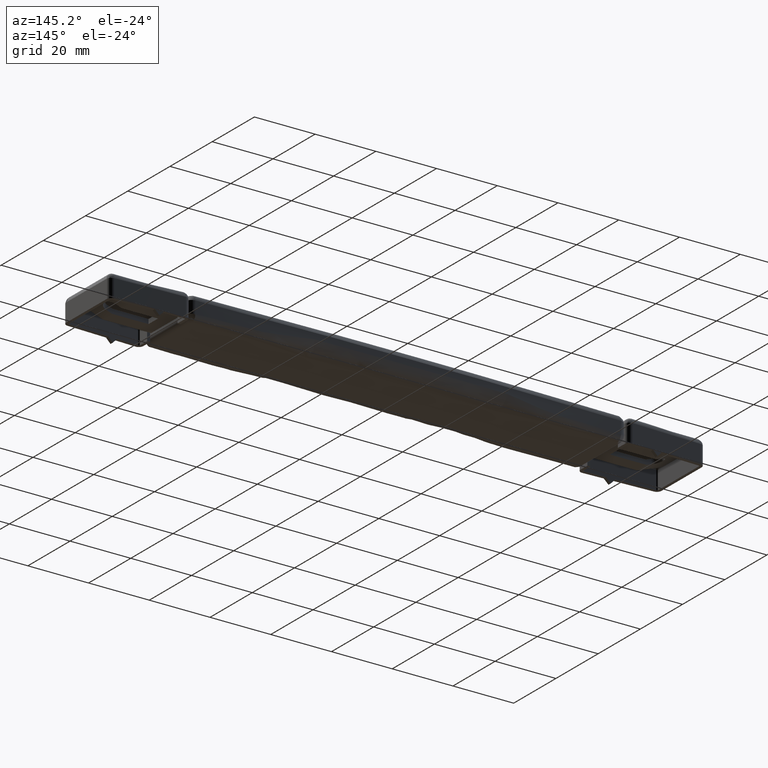
[diagram: clean part render]
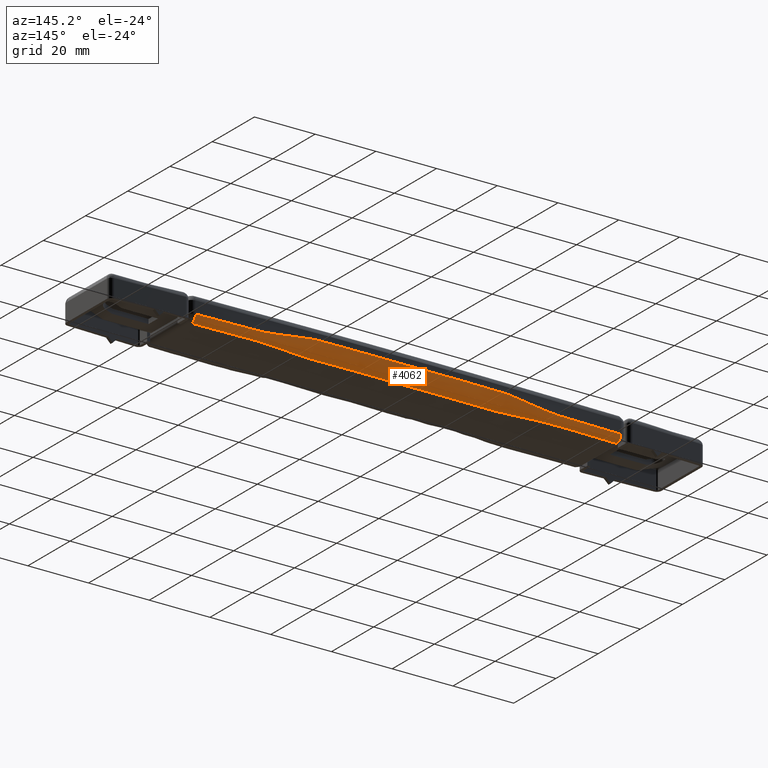
[diagram: same view with one face highlighted and labeled with its STEP entity id]
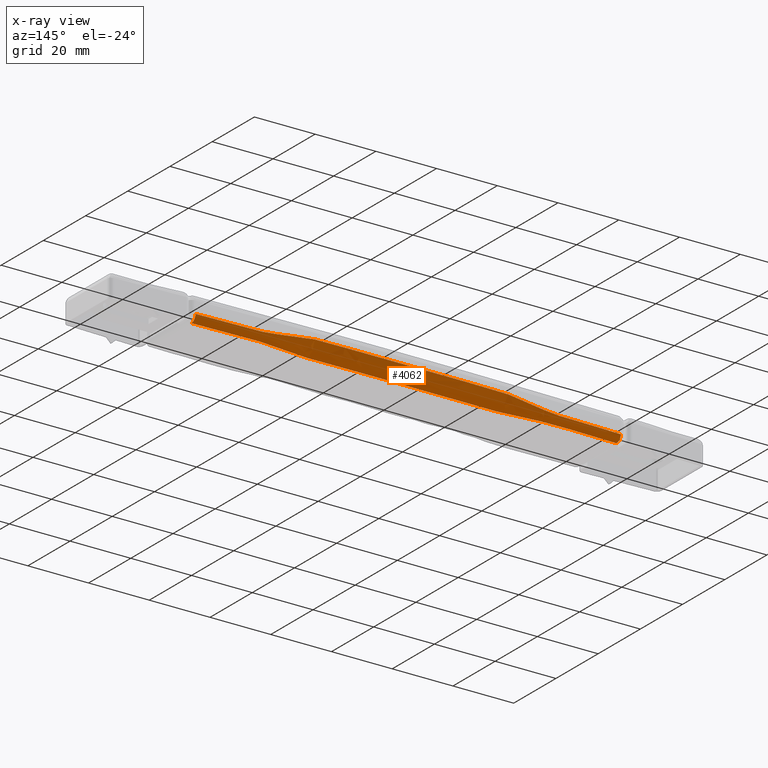
[diagram: x-ray of the same camera — body ghosted, the highlighted face saturated]
A machine part, auxiliary view. The second image highlights one B-rep face of the part: STEP entity #4062.
The next image is the same camera in x-ray: the body ghosted, the highlighted face saturated — about 0% of this face is hidden behind the body in this view.
In plain terms, the highlighted face is a freeform B-spline surface patch.
Its self-contained STEP definition (entity closure, byte-faithful):
#3241=CARTESIAN_POINT('',(-69.999500000000012,9.434623308189460,0.0));
#3242=VERTEX_POINT('',#3241);
#3287=CARTESIAN_POINT('',(70.0,9.434608070649849,0.0));
#3288=VERTEX_POINT('',#3287);
#3570=CARTESIAN_POINT('',(-69.999500000000012,9.434623308189460,0.0));
#3571=CARTESIAN_POINT('',(-64.890774951349059,9.590416958803735,0.0));
#3572=CARTESIAN_POINT('',(-58.960390457981433,9.750965812828145,0.0));
#3573=CARTESIAN_POINT('',(-52.755754564660471,9.896153552632587,0.0));
#3574=CARTESIAN_POINT('',(-51.352911080286042,9.928799184463300,0.0));
#3575=CARTESIAN_POINT('',(-50.668684534759073,9.946255139675378,0.0));
#3576=CARTESIAN_POINT('',(-49.619476621810222,9.972973251448888,0.0));
#3577=CARTESIAN_POINT('',(-48.786441725788833,9.967728333638700,0.0));
#3578=CARTESIAN_POINT('',(-47.417989484242980,9.925785367020140,0.0));
#3579=CARTESIAN_POINT('',(-46.005354894524451,9.843727214823481,0.0));
#3580=CARTESIAN_POINT('',(-44.551087082496352,9.708435514597785,0.0));
#3581=CARTESIAN_POINT('',(-43.439625053543963,9.587574789507888,0.0));
#3582=CARTESIAN_POINT('',(-41.898996652501992,9.403099461580830,0.0));
#3583=CARTESIAN_POINT('',(-40.269934847263670,9.189983279529628,0.0));
#3584=CARTESIAN_POINT('',(-38.935083663525731,9.014349651794399,0.0));
#3585=CARTESIAN_POINT('',(-37.894121848899232,8.879563007693978,0.0));
#3586=CARTESIAN_POINT('',(-36.671464605237290,8.726727288714269,0.0));
#3587=CARTESIAN_POINT('',(-35.310473294189777,8.578302020593412,0.0));
#3588=CARTESIAN_POINT('',(-34.220146455806990,8.474872409705190,0.0));
#3589=CARTESIAN_POINT('',(-32.809745965396807,8.363749403147708,0.0));
#3590=CARTESIAN_POINT('',(-31.532664249190180,8.311924925097593,0.0));
#3591=CARTESIAN_POINT('',(-30.734190936513670,8.304443334949321,0.0));
#3592=CARTESIAN_POINT('',(-30.574575502662601,8.302762701289746,0.0));
#3593=CARTESIAN_POINT('',(-30.414962385631181,8.305486938083607,0.0));
#3594=CARTESIAN_POINT('',(-30.098303679549630,8.308039407971991,0.0));
#3595=CARTESIAN_POINT('',(-28.934661159184351,8.321151954508180,0.0));
#3596=CARTESIAN_POINT('',(-26.858319434721441,8.343758273247140,0.0));
#3597=CARTESIAN_POINT('',(-25.007334982369130,8.364941572814804,0.0));
#3598=CARTESIAN_POINT('',(-8.762183433331632,8.535488708433626,0.0));
#3599=CARTESIAN_POINT('',(7.302075077735280,8.543128132073253,0.0));
#3600=CARTESIAN_POINT('',(23.821079140000290,8.377762784903579,0.0));
#3601=CARTESIAN_POINT('',(26.373868388101481,8.349289450400358,0.0));
#3602=CARTESIAN_POINT('',(28.457318737856870,8.326400722601145,0.0));
#3603=CARTESIAN_POINT('',(30.084415788392359,8.308080847125197,0.0));
#3604=CARTESIAN_POINT('',(30.432118118086169,8.305412094265448,0.0));
#3605=CARTESIAN_POINT('',(30.584626421004891,8.302824377148733,0.0));
#3606=CARTESIAN_POINT('',(30.737109678923542,8.304321033329259,0.0));
#3607=CARTESIAN_POINT('',(32.080672195623208,8.317709368031197,0.0));
#3608=CARTESIAN_POINT('',(33.493625770136589,8.406272190257790,0.0));
#3609=CARTESIAN_POINT('',(35.197222232093146,8.567457691546924,0.0));
#3610=CARTESIAN_POINT('',(35.968708880908281,8.649364991588758,0.0));
#3611=CARTESIAN_POINT('',(37.328566810264263,8.807571395964448,0.0));
#3612=CARTESIAN_POINT('',(38.845110517742498,9.001018452296931,0.0));
#3613=CARTESIAN_POINT('',(40.360612112509990,9.202121361472461,0.0));
#3614=CARTESIAN_POINT('',(41.628016110541942,9.365123226210358,0.0));
#3615=CARTESIAN_POINT('',(42.714715030049682,9.501690128660526,0.0));
#3616=CARTESIAN_POINT('',(43.598549196084193,9.605370916759533,0.0));
#3617=CARTESIAN_POINT('',(44.687552026440109,9.721807704064212,0.0));
#3618=CARTESIAN_POINT('',(46.051103835965947,9.845858441193661,0.0));
#3619=CARTESIAN_POINT('',(47.463620767984331,9.927231228158316,0.0));
#3620=CARTESIAN_POINT('',(48.284634400065073,9.952851481966599,0.0));
#3621=CARTESIAN_POINT('',(48.809363751343092,9.959169605841877,0.0));
#3622=CARTESIAN_POINT('',(49.493869530361167,9.958658382607661,0.0));
#3623=CARTESIAN_POINT('',(50.543445629594878,9.945985322345562,0.0));
#3624=CARTESIAN_POINT('',(51.661317883309522,9.923184170096665,0.0));
#3625=CARTESIAN_POINT('',(53.075581663139602,9.887381984490968,0.0));
#3626=CARTESIAN_POINT('',(56.006606913338111,9.811899373512615,0.0));
#3627=CARTESIAN_POINT('',(58.618380424465983,9.748146477771254,0.0));
#3628=CARTESIAN_POINT('',(61.104657165599221,9.687608009864780,0.0));
#3629=CARTESIAN_POINT('',(62.096946917667523,9.664348017071228,0.0));
#3630=CARTESIAN_POINT('',(65.233217615903939,9.578771730212621,0.0));
#3631=CARTESIAN_POINT('',(67.856111875632635,9.499585808200294,0.0));
#3632=CARTESIAN_POINT('',(70.0,9.434608070649849,0.0));
#3633=B_SPLINE_CURVE_WITH_KNOTS('',3,(#3570,#3571,#3572,#3573,#3574,#3575,#3576,#3577,#3578,#3579,#3580,#3581,#3582,#3583,#3584,#3585,#3586,#3587,#3588,#3589,#3590,#3591,#3592,#3593,#3594,#3595,#3596,#3597,#3598,#3599,#3600,#3601,#3602,#3603,#3604,#3605,#3606,#3607,#3608,#3609,#3610,#3611,#3612,#3613,#3614,#3615,#3616,#3617,#3618,#3619,#3620,#3621,#3622,#3623,#3624,#3625,#3626,#3627,#3628,#3629,#3630,#3631,#3632),.UNSPECIFIED.,.F.,.U.,(4,1,1,1,1,1,1,1,1,1,1,1,1,2,1,1,1,1,2,1,2,1,1,2,1,1,1,1,2,1,2,1,1,1,1,1,1,1,1,1,1,1,1,1,1,1,1,1,1,1,2,1,1,4),(0.000127201768322,15.333424247622791,17.797704069123359,18.619130676290268,19.543090128636180,19.851076612751442,21.767651213891700,22.041556550005168,23.958303684436270,26.011873534872379,26.422660623407051,27.312359144772021,30.666690802362641,31.351436989211649,33.815652478253128,35.047859827711427,35.458463320848040,37.101304839379772,39.291733277984690,39.496674876865271,39.770600846053640,40.446679672319242,43.261749671859548,45.999995678922247,91.999889840061741,94.190356841096587,95.559485580304752,99.658733834304030,100.441085226701200,100.701869024166800,100.898636084870600,104.731958576593500,105.142695338069800,106.032573743579800,107.059322136123000,109.249744058952700,110.618986005734300,111.645693910061600,113.083268195288400,113.904706724467800,114.315337459230700,116.368911983708700,118.011715205922400,118.559310457083700,118.833010658596810,119.585980009285390,120.612777927124990,121.981932509575100,122.940267321004100,124.856929439982910,130.777920893772010,132.317970389881710,133.755603685478890,140.190225599619590),.UNSPECIFIED.);
#3634=EDGE_CURVE('',#3242,#3288,#3633,.T.);
#3754=CARTESIAN_POINT('',(-70.042578433948378,10.848180621515700,0.585786448086645));
#3755=VERTEX_POINT('',#3754);
#3756=CARTESIAN_POINT('',(-70.060422106179104,11.433695242360381,1.999999999991010));
#3757=VERTEX_POINT('',#3756);
#3758=CARTESIAN_POINT('',(-70.042578433948378,10.848180621515702,0.585786448086645));
#3759=CARTESIAN_POINT('',(-70.060422105403703,11.433695217090797,1.171572883918898));
#3760=CARTESIAN_POINT('',(-70.060422105403504,11.433695217088941,2.0));
#3768=(BOUNDED_CURVE()B_SPLINE_CURVE(2,(#3758,#3759,#3760),.UNSPECIFIED.,.F.,.U.)B_SPLINE_CURVE_WITH_KNOTS((3,3),(0.500000004464082,1.0),.UNSPECIFIED.)CURVE()GEOMETRIC_REPRESENTATION_ITEM()RATIONAL_B_SPLINE_CURVE((0.853553390593273,0.853553391900773,1.0))REPRESENTATION_ITEM(''));
#3769=EDGE_CURVE('',#3755,#3757,#3768,.T.);
#3771=CARTESIAN_POINT('',(-69.999500000000012,9.434623308189460,0.0));
#3772=CARTESIAN_POINT('',(-70.024734762438399,10.262666024146789,0.000000010459740));
#3773=CARTESIAN_POINT('',(-70.042578433948378,10.848180621515702,0.585786448086645));
#3781=(BOUNDED_CURVE()B_SPLINE_CURVE(2,(#3771,#3772,#3773),.UNSPECIFIED.,.F.,.U.)B_SPLINE_CURVE_WITH_KNOTS((3,3),(8.928164E-009,0.500000004464082),.UNSPECIFIED.)CURVE()GEOMETRIC_REPRESENTATION_ITEM()RATIONAL_B_SPLINE_CURVE((0.999999994770003,0.853553389285774,0.853553390593273))REPRESENTATION_ITEM(''));
#3782=EDGE_CURVE('',#3242,#3755,#3781,.T.);
#3825=CARTESIAN_POINT('',(70.060922541340304,11.433679991446960,1.999999999896195));
#3826=VERTEX_POINT('',#3825);
#3841=CARTESIAN_POINT('',(70.043078735471397,10.848165374704230,0.585786448044203));
#3842=VERTEX_POINT('',#3841);
#3843=CARTESIAN_POINT('',(70.043078735471383,10.848165374704234,0.585786448044203));
#3844=CARTESIAN_POINT('',(70.025234936505242,10.262650781215097,0.000000010417298));
#3845=CARTESIAN_POINT('',(69.999999993815877,9.434608095990788,1.581254E-016));
#3853=(BOUNDED_CURVE()B_SPLINE_CURVE(2,(#3843,#3844,#3845),.UNSPECIFIED.,.F.,.U.)B_SPLINE_CURVE_WITH_KNOTS((3,3),(0.500000004447414,1.0),.UNSPECIFIED.)CURVE()GEOMETRIC_REPRESENTATION_ITEM()RATIONAL_B_SPLINE_CURVE((0.853553390593274,0.853553389290657,0.999999994789531))REPRESENTATION_ITEM(''));
#3854=EDGE_CURVE('',#3842,#3288,#3853,.T.);
#3856=CARTESIAN_POINT('',(70.060922541340304,11.433679991446960,1.999999999896195));
#3857=CARTESIAN_POINT('',(70.060922534383096,11.433679966406251,1.171572883883157));
#3858=CARTESIAN_POINT('',(70.043078735471383,10.848165374704234,0.585786448044203));
#3866=(BOUNDED_CURVE()B_SPLINE_CURVE(2,(#3856,#3857,#3858),.UNSPECIFIED.,.F.,.U.)B_SPLINE_CURVE_WITH_KNOTS((3,3),(8.894828E-009,0.500000004447414),.UNSPECIFIED.)CURVE()GEOMETRIC_REPRESENTATION_ITEM()RATIONAL_B_SPLINE_CURVE((1.0,0.853553391895891,0.853553390593274))REPRESENTATION_ITEM(''));
#3867=EDGE_CURVE('',#3826,#3842,#3866,.T.);
#3872=CARTESIAN_POINT('',(-71.398008011460334,9.358067568904044,1.064665E-014));
#3873=CARTESIAN_POINT('',(-71.398226122469509,9.365084148610045,8.430210E-015));
#3874=CARTESIAN_POINT('',(-71.398749661284910,9.381926268780919,3.110031E-015));
#3875=CARTESIAN_POINT('',(-71.461195873916097,11.390806196471511,-6.336374E-013));
#3876=CARTESIAN_POINT('',(-71.461195865796867,11.390805930815194,2.011150584023862));
#3877=CARTESIAN_POINT('',(-71.461195865727873,11.390805928555563,2.029284304946693));
#3878=CARTESIAN_POINT('',(-71.461195865701157,11.390805927681551,2.036298262712596));
#3879=CARTESIAN_POINT('',(-65.245965887433087,9.549068966498220,1.073519E-014));
#3880=CARTESIAN_POINT('',(-65.246165204319709,9.556086113732450,8.500012E-015));
#3881=CARTESIAN_POINT('',(-65.246643631002470,9.572929596147315,3.134854E-015));
#3882=CARTESIAN_POINT('',(-65.303708989022653,11.581971730776495,-6.130711E-013));
#3883=CARTESIAN_POINT('',(-65.303709129767640,11.581976314803125,2.011150584023863));
#3884=CARTESIAN_POINT('',(-65.303709130965231,11.581976353798733,2.029284304946692));
#3885=CARTESIAN_POINT('',(-65.303709131428249,11.581976368876633,2.036298262712594));
#3886=CARTESIAN_POINT('',(-59.093162940228154,9.715597716061023,-6.417127E-015));
#3887=CARTESIAN_POINT('',(-59.093343461637609,9.722615387642193,-5.080631E-015));
#3888=CARTESIAN_POINT('',(-59.093776772937197,9.739460128676329,-1.872597E-015));
#3889=CARTESIAN_POINT('',(-59.145460905471218,11.748652661149235,3.326735E-013));
#3890=CARTESIAN_POINT('',(-59.145460900319513,11.748652493801796,2.011150584023856));
#3891=CARTESIAN_POINT('',(-59.145460900276206,11.748652492391175,2.029284304946678));
#3892=CARTESIAN_POINT('',(-59.145460900259422,11.748652491845750,2.036298262712577));
#3893=CARTESIAN_POINT('',(-51.335830226050625,9.894355612141254,1.301874E-015));
#3894=CARTESIAN_POINT('',(-51.335987049869878,9.901373829230167,1.031069E-015));
#3895=CARTESIAN_POINT('',(-51.336363479087574,9.918219879663479,3.810466E-016));
#3896=CARTESIAN_POINT('',(-51.381262879300301,11.927568582755494,-9.554902E-014));
#3897=CARTESIAN_POINT('',(-51.381262879543144,11.927568590916609,2.011150584023859));
#3898=CARTESIAN_POINT('',(-51.381262879545496,11.927568590992694,2.029284304946685));
#3899=CARTESIAN_POINT('',(-51.381262879546377,11.927568591022101,2.036298262712585));
#3900=CARTESIAN_POINT('',(-49.732631905050269,9.962509755279474,-2.636167E-015));
#3901=CARTESIAN_POINT('',(-49.732781276072444,9.969414607451673,-2.088041E-015));
#3902=CARTESIAN_POINT('',(-49.733139816103503,9.985988544457895,-7.723574E-016));
#3903=CARTESIAN_POINT('',(-49.775844849609165,11.962881368265876,2.789991E-013));
#3904=CARTESIAN_POINT('',(-49.775844849627646,11.962881369245945,1.978633874000777));
#3905=CARTESIAN_POINT('',(-49.775844849627859,11.962881369254948,1.996474405070205));
#3906=CARTESIAN_POINT('',(-49.775844849627916,11.962881369258429,2.003374959676441));
#3907=CARTESIAN_POINT('',(-42.505893692358633,9.739620822144845,1.136462E-014));
#3908=CARTESIAN_POINT('',(-42.506049367749981,9.747817459912454,9.001351E-015));
#3909=CARTESIAN_POINT('',(-42.506423040359493,9.767492111104845,3.328719E-015));
#3910=CARTESIAN_POINT('',(-42.551305218211759,12.114222802895437,-1.101747E-012));
#3911=CARTESIAN_POINT('',(-42.551305218117079,12.114222797755824,2.348672567390052));
#3912=CARTESIAN_POINT('',(-42.551305218116269,12.114222797709139,2.369849585763576));
#3913=CARTESIAN_POINT('',(-42.551305218115949,12.114222797691077,2.378040663210488));
#3914=CARTESIAN_POINT('',(-36.867588902916026,8.373781576150103,-1.921275E-014));
#3915=CARTESIAN_POINT('',(-36.867813189148919,8.387027947770479,-1.521695E-014));
#3916=CARTESIAN_POINT('',(-36.868351550550820,8.418823636269192,-5.625696E-015));
#3917=CARTESIAN_POINT('',(-36.931787379115775,12.211336359449007,1.511982E-012));
#3918=CARTESIAN_POINT('',(-36.931787379343938,12.211336371852006,3.795486065559294));
#3919=CARTESIAN_POINT('',(-36.931787379346019,12.211336371963013,3.829708408563453));
#3920=CARTESIAN_POINT('',(-36.931787379346801,12.211336372005942,3.842945298526791));
#3921=CARTESIAN_POINT('',(-30.455376565715483,8.228879709549206,1.654876E-014));
#3922=CARTESIAN_POINT('',(-30.455562295456108,8.242931811337002,1.310905E-014));
#3923=CARTESIAN_POINT('',(-30.456008108479260,8.276661519667826,4.852596E-015));
#3924=CARTESIAN_POINT('',(-30.509160750900531,12.298780768076625,-1.745160E-012));
#3925=CARTESIAN_POINT('',(-30.509160751057394,12.298781127708114,4.025073767410186));
#3926=CARTESIAN_POINT('',(-30.509160751059113,12.298781130379616,4.061375820891756));
#3927=CARTESIAN_POINT('',(-30.509160751059763,12.298781131412918,4.075417123888466));
#3928=CARTESIAN_POINT('',(-10.419842569397987,8.494106215908078,-8.219825E-014));
#3929=CARTESIAN_POINT('',(-10.419906289816414,8.508146299048502,-6.513522E-014));
#3930=CARTESIAN_POINT('',(-10.420059239970087,8.541847158636518,-2.417830E-014));
#3931=CARTESIAN_POINT('',(-10.438309456831981,12.561542773834748,1.023517E-011));
#3932=CARTESIAN_POINT('',(-10.438309457947959,12.561541717505445,4.022190402996929));
#3933=CARTESIAN_POINT('',(-10.438309457955569,12.561541708133078,4.058457265373372));
#3934=CARTESIAN_POINT('',(-10.438309457958518,12.561541704507917,4.072484956771771));
#3935=CARTESIAN_POINT('',(10.420342083973939,8.494098585026761,6.493650E-014));
#3936=CARTESIAN_POINT('',(10.420405808311342,8.508138678958719,5.139213E-014));
#3937=CARTESIAN_POINT('',(10.420558767871892,8.541839564450003,1.888115E-014));
#3938=CARTESIAN_POINT('',(10.438810138532178,12.561540505146327,-2.681676E-013));
#3939=CARTESIAN_POINT('',(10.438810138774487,12.561539446774562,4.022195728214538));
#3940=CARTESIAN_POINT('',(10.438810138779933,12.561539437378601,4.058462618482278));
#3941=CARTESIAN_POINT('',(10.438810138782031,12.561539433744331,4.072490320668775));
#3942=CARTESIAN_POINT('',(30.455874152969965,8.228910641896313,-4.457336E-015));
#3943=CARTESIAN_POINT('',(30.456060336276003,8.242954941363704,-3.533142E-015));
#3944=CARTESIAN_POINT('',(30.456507238006708,8.276665921535887,-1.314768E-015));
#3945=CARTESIAN_POINT('',(30.509661374575426,12.298774564437405,8.486383E-013));
#3946=CARTESIAN_POINT('',(30.509661374507047,12.298774484440225,4.025061308409415));
#3947=CARTESIAN_POINT('',(30.509661374506909,12.298774484302768,4.061343189195054));
#3948=CARTESIAN_POINT('',(30.509661374506848,12.298774484249588,4.075376689577073));
#3949=CARTESIAN_POINT('',(36.868088923617123,8.373773548543376,3.690006E-014));
#3950=CARTESIAN_POINT('',(36.868313160319865,8.387019920733968,2.922188E-014));
#3951=CARTESIAN_POINT('',(36.868851402832931,8.418815610601392,1.079168E-014));
#3952=CARTESIAN_POINT('',(36.932287983595891,12.211328321260611,-2.083766E-012));
#3953=CARTESIAN_POINT('',(36.932287983791326,12.211328332426252,3.795486065356745));
#3954=CARTESIAN_POINT('',(36.932287983793024,12.211328332529577,3.829708408355288));
#3955=CARTESIAN_POINT('',(36.932287983793650,12.211328332569536,3.842945298316452));
#3956=CARTESIAN_POINT('',(42.506393485213735,9.739611571715493,-8.035578E-014));
#3957=CARTESIAN_POINT('',(42.506549219409187,9.747808208780397,-6.362138E-014));
#3958=CARTESIAN_POINT('',(42.506923033168057,9.767482858286066,-2.345328E-014));
#3959=CARTESIAN_POINT('',(42.551805801505346,12.114213539092537,3.966217E-012));
#3960=CARTESIAN_POINT('',(42.551805801434689,12.114213535072102,2.348672567619731));
#3961=CARTESIAN_POINT('',(42.551805801433993,12.114213535033233,2.369849585996894));
#3962=CARTESIAN_POINT('',(42.551805801433716,12.114213535018189,2.378040663445214));
#3963=CARTESIAN_POINT('',(49.733132094485946,9.962498928729834,2.008808E-014));
#3964=CARTESIAN_POINT('',(49.733281451474681,9.969403781051428,1.590410E-014));
#3965=CARTESIAN_POINT('',(49.733639957820849,9.985977718416251,5.861153E-015));
#3966=CARTESIAN_POINT('',(49.776345399964626,11.962870533236311,-9.430136E-013));
#3967=CARTESIAN_POINT('',(49.776345399974758,11.962870533909145,1.978633873924145));
#3968=CARTESIAN_POINT('',(49.776345399974907,11.962870533915922,1.996474404992592));
#3969=CARTESIAN_POINT('',(49.776345399974950,11.962870533918540,2.003374959598449));
#3970=CARTESIAN_POINT('',(51.336330326130060,9.894344437666172,-9.984005E-015));
#3971=CARTESIAN_POINT('',(51.336487151476980,9.901362654716630,-7.902856E-015));
#3972=CARTESIAN_POINT('',(51.336863584361559,9.918208705057639,-2.907407E-015));
#3973=CARTESIAN_POINT('',(51.381763421931424,11.927557396600557,3.571830E-013));
#3974=CARTESIAN_POINT('',(51.381763422215130,11.927557406114399,2.011150584023855));
#3975=CARTESIAN_POINT('',(51.381763422217659,11.927557406197671,2.029284304946675));
#3976=CARTESIAN_POINT('',(51.381763422218619,11.927557406229871,2.036298262712573));
#3977=CARTESIAN_POINT('',(59.093663001398482,9.715584851685515,-3.546965E-014));
#3978=CARTESIAN_POINT('',(59.093843524335156,9.722602523220253,-2.808705E-014));
#3979=CARTESIAN_POINT('',(59.094276839300576,9.739447264142964,-1.036635E-014));
#3980=CARTESIAN_POINT('',(59.145961409065990,11.748639782344815,2.320013E-012));
#3981=CARTESIAN_POINT('',(59.145961404028668,11.748639618892001,2.011150584023847));
#3982=CARTESIAN_POINT('',(59.145961403986121,11.748639617509250,2.029284304946653));
#3983=CARTESIAN_POINT('',(59.145961403969636,11.748639616974611,2.036298262712545));
#3984=CARTESIAN_POINT('',(65.246465912350700,9.549054763146922,1.897677E-013));
#3985=CARTESIAN_POINT('',(65.246665230764890,9.556071910341967,1.502607E-013));
#3986=CARTESIAN_POINT('',(65.247143661114407,9.572915392662784,5.543067E-014));
#3987=CARTESIAN_POINT('',(65.304209456486035,11.581957516618232,-1.124363E-011));
#3988=CARTESIAN_POINT('',(65.304209597188873,11.581962099333911,2.011150584023921));
#3989=CARTESIAN_POINT('',(65.304209598386123,11.581962138322101,2.029284304946849));
#3990=CARTESIAN_POINT('',(65.304209598849042,11.581962153397130,2.036298262712789));
#3991=CARTESIAN_POINT('',(71.398507994792794,9.358052027047661,1.434361E-013));
#3992=CARTESIAN_POINT('',(71.398726107329395,9.365068606705803,1.135751E-013));
#3993=CARTESIAN_POINT('',(71.399249649811097,9.381910726761797,4.189868E-014));
#3994=CARTESIAN_POINT('',(71.461696299747899,11.390790640698111,-8.510461E-012));
#3995=CARTESIAN_POINT('',(71.461696291628144,11.390790374977623,2.011150584023906));
#3996=CARTESIAN_POINT('',(71.461696291559136,11.390790372717001,2.029284304946809));
#3997=CARTESIAN_POINT('',(71.461696291532405,11.390790371842598,2.036298262712738));
#4005=(BOUNDED_SURFACE()B_SPLINE_SURFACE(2,3,((#3872,#3879,#3886,#3893,#3900,#3907,#3914,#3921,#3928,#3935,#3942,#3949,#3956,#3963,#3970,#3977,#3984,#3991),(#3873,#3880,#3887,#3894,#3901,#3908,#3915,#3922,#3929,#3936,#3943,#3950,#3957,#3964,#3971,#3978,#3985,#3992),(#3874,#3881,#3888,#3895,#3902,#3909,#3916,#3923,#3930,#3937,#3944,#3951,#3958,#3965,#3972,#3979,#3986,#3993),(#3875,#3882,#3889,#3896,#3903,#3910,#3917,#3924,#3931,#3938,#3945,#3952,#3959,#3966,#3973,#3980,#3987,#3994),(#3876,#3883,#3890,#3897,#3904,#3911,#3918,#3925,#3932,#3939,#3946,#3953,#3960,#3967,#3974,#3981,#3988,#3995),(#3877,#3884,#3891,#3898,#3905,#3912,#3919,#3926,#3933,#3940,#3947,#3954,#3961,#3968,#3975,#3982,#3989,#3996),(#3878,#3885,#3892,#3899,#3906,#3913,#3920,#3927,#3934,#3941,#3948,#3955,#3962,#3969,#3976,#3983,#3990,#3997)),.UNSPECIFIED.,.F.,.F.,.U.)B_SPLINE_SURFACE_WITH_KNOTS((3,1,1,1,1,3),(4,2,2,2,1,1,2,2,2,4),(0.0,0.033319934290206,0.079582702870771,6.708341784940811,6.760728233201548,6.794055491193422),(0.0,18.669124922175939,23.535484501382619,40.567743028617087,43.000922818220182,101.397237768732890,103.830417558335900,120.862676085570400,125.729035664777100,144.398160586952000),.UNSPECIFIED.)GEOMETRIC_REPRESENTATION_ITEM()RATIONAL_B_SPLINE_SURFACE(((1.007032759440223,1.007032759440223,1.007032759440223,1.007032759440223,1.007032759440223,1.007032759440223,1.007032759440223,1.007032759440223,1.007032759440223,1.007032759440223,1.007032759440223,1.007032759440223,1.007032759440223,1.007032759440223,1.007032759440223,1.007032759440223,1.007032759440223,1.007032759440223),(1.005560510609924,1.005560510609924,1.005560510609924,1.005560510609924,1.005560510609924,1.005560510609924,1.005560510609924,1.005560510609924,1.005560510609924,1.005560510609924,1.005560510609924,1.005560510609924,1.005560510609924,1.005560510609924,1.005560510609924,1.005560510609924,1.005560510609924,1.005560510609924),(1.002044130889812,1.002044130889812,1.002044130889812,1.002044130889812,1.002044130889812,1.002044130889812,1.002044130889812,1.002044130889812,1.002044130889812,1.002044130889812,1.002044130889812,1.002044130889812,1.002044130889812,1.002044130889812,1.002044130889812,1.002044130889812,1.002044130889812,1.002044130889812),(0.707106781186547,0.707106781186547,0.707106781186547,0.707106781186547,0.707106781186547,0.707106781186547,0.707106781186547,0.707106781186547,0.707106781186547,0.707106781186547,0.707106781186547,0.707106781186547,0.707106781186547,0.707106781186547,0.707106781186547,0.707106781186547,0.707106781186547,0.707106781186547),(1.002314707061054,1.002314707061054,1.002314707061054,1.002314707061054,1.002314707061054,1.002314707061054,1.002314707061054,1.002314707061054,1.002314707061054,1.002314707061054,1.002314707061054,1.002314707061054,1.002314707061054,1.002314707061054,1.002314707061054,1.002314707061054,1.002314707061054,1.002314707061054),(1.006101986551820,1.006101986551820,1.006101986551820,1.006101986551820,1.006101986551820,1.006101986551820,1.006101986551820,1.006101986551820,1.006101986551820,1.006101986551820,1.006101986551820,1.006101986551820,1.006101986551820,1.006101986551820,1.006101986551820,1.006101986551820,1.006101986551820,1.006101986551820),(1.007574558981533,1.007574558981533,1.007574558981533,1.007574558981533,1.007574558981533,1.007574558981533,1.007574558981533,1.007574558981533,1.007574558981533,1.007574558981533,1.007574558981533,1.007574558981533,1.007574558981533,1.007574558981533,1.007574558981533,1.007574558981533,1.007574558981533,1.007574558981533)))REPRESENTATION_ITEM('')SURFACE());
#4006=ORIENTED_EDGE('',*,*,#3634,.F.);
#4007=ORIENTED_EDGE('',*,*,#3782,.T.);
#4008=ORIENTED_EDGE('',*,*,#3769,.T.);
#4009=CARTESIAN_POINT('',(70.060922541340304,11.433679991446960,1.999999999896195));
#4010=CARTESIAN_POINT('',(67.985131336759324,11.495347299858439,1.999993883140335));
#4011=CARTESIAN_POINT('',(64.287772353036388,11.605187912081460,1.999982987908680));
#4012=CARTESIAN_POINT('',(59.422637933759361,11.734434931665410,1.999929759156624));
#4013=CARTESIAN_POINT('',(55.920146009163922,11.821705197428059,1.999759724209971));
#4014=CARTESIAN_POINT('',(53.780445617778902,11.872309873604150,1.999695167426434));
#4015=CARTESIAN_POINT('',(51.908328084759823,11.915412058841730,1.999194516618192));
#4016=CARTESIAN_POINT('',(50.189855998140303,11.953675422206061,1.997023135148806));
#4017=CARTESIAN_POINT('',(48.282474114825568,11.994328023734891,2.031015246930440));
#4018=CARTESIAN_POINT('',(46.789952241923807,12.025158133439991,2.136643394078094));
#4019=CARTESIAN_POINT('',(45.330115759733701,12.054424371915699,2.275542792962875));
#4020=CARTESIAN_POINT('',(43.757273740416757,12.084915797592551,2.462204261943198));
#4021=CARTESIAN_POINT('',(41.772135691980928,12.121993774732100,2.743234184840033));
#4022=CARTESIAN_POINT('',(39.490165654738071,12.162443801821221,3.083669301762111));
#4023=CARTESIAN_POINT('',(37.132250762432207,12.201589754872611,3.428052244833480));
#4024=CARTESIAN_POINT('',(34.903226831538277,12.236474061708490,3.714460876428911));
#4025=CARTESIAN_POINT('',(32.807877446922319,12.267345917879000,3.910592128922406));
#4026=CARTESIAN_POINT('',(31.121941804897581,12.290578290335629,3.995093032932618));
#4027=CARTESIAN_POINT('',(29.722420497016191,12.309029607740131,3.997408513673379));
#4028=CARTESIAN_POINT('',(28.262738581547609,12.327598158260731,4.000094187189374));
#4029=CARTESIAN_POINT('',(25.566601792356259,12.359721099678969,3.999938760325939));
#4030=CARTESIAN_POINT('',(21.897281992803080,12.398150366457690,4.000020180392837));
#4031=CARTESIAN_POINT('',(16.058199914959680,12.448184576810039,3.999988300429789));
#4032=CARTESIAN_POINT('',(8.759189256293141,12.489880334898430,4.000004394217262));
#4033=CARTESIAN_POINT('',(0.000250331616593,12.506559355869680,3.999997341456932));
#4034=CARTESIAN_POINT('',(-8.758688580299173,12.489882241542160,4.000006239955027));
#4035=CARTESIAN_POINT('',(-16.057699289013449,12.448188072376951,3.999982455592831));
#4036=CARTESIAN_POINT('',(-21.896781295795869,12.398155132952921,4.000030331956829));
#4037=CARTESIAN_POINT('',(-25.565834010762160,12.359729464689400,3.999907937711593));
#4038=CARTESIAN_POINT('',(-28.261703109986879,12.327610764221211,4.000141554602434));
#4039=CARTESIAN_POINT('',(-29.721385716080931,12.309043041597709,3.997320272378577));
#4040=CARTESIAN_POINT('',(-30.881647236796240,12.293746563852411,3.995683347691382));
#4041=CARTESIAN_POINT('',(-32.042538483530556,12.277931404488911,3.950467621605908));
#4042=CARTESIAN_POINT('',(-33.502778908846622,12.257145692082339,3.847372530678634));
#4043=CARTESIAN_POINT('',(-35.148482330236753,12.232635327462230,3.682726410271000));
#4044=CARTESIAN_POINT('',(-37.131358179487513,12.201604185640431,3.428184543302800));
#4045=CARTESIAN_POINT('',(-39.489100171099217,12.162462199761849,3.083700998785987));
#4046=CARTESIAN_POINT('',(-41.771462835696347,12.122006046476431,2.743362297375454));
#4047=CARTESIAN_POINT('',(-44.003162465916837,12.080323365574650,2.427116775849035));
#4048=CARTESIAN_POINT('',(-46.021809950761231,12.040866812663999,2.199228087670828));
#4049=CARTESIAN_POINT('',(-48.042182117738719,11.999446180340790,2.036205342506074));
#4050=CARTESIAN_POINT('',(-50.189200014797727,11.953700553492739,1.996636615232163));
#4051=CARTESIAN_POINT('',(-53.147692924984362,11.887727873994031,2.000669781414121));
#4052=CARTESIAN_POINT('',(-59.885507897561162,11.728291712555770,1.998979531422958));
#4053=CARTESIAN_POINT('',(-65.722335943254777,11.559296780103111,1.999564922069809));
#4054=CARTESIAN_POINT('',(-70.060422106174798,11.433695242360820,2.000000000000002));
#4055=B_SPLINE_CURVE_WITH_KNOTS('',3,(#4009,#4010,#4011,#4012,#4013,#4014,#4015,#4016,#4017,#4018,#4019,#4020,#4021,#4022,#4023,#4024,#4025,#4026,#4027,#4028,#4029,#4030,#4031,#4032,#4033,#4034,#4035,#4036,#4037,#4038,#4039,#4040,#4041,#4042,#4043,#4044,#4045,#4046,#4047,#4048,#4049,#4050,#4051,#4052,#4053,#4054),.UNSPECIFIED.,.F.,.U.,(4,1,1,1,1,1,1,1,1,1,1,1,1,1,1,1,1,1,1,1,1,1,1,1,1,1,1,1,1,1,1,1,1,1,1,1,1,1,1,1,1,1,1,4),(0.0,0.044380496203012,0.079049678009906,0.104007542385464,0.119254087166153,0.124789311191695,0.144026214445056,0.155990512016442,0.165554416205118,0.175999984476000,0.187333969360913,0.199405368822754,0.218852457233639,0.236648714342782,0.250336457954506,0.266880499127404,0.281618429992742,0.286391305264236,0.296790428711076,0.312815851447357,0.344013180195941,0.375210508944526,0.437605138164037,0.499999767383551,0.562394396603000,0.624789025822489,0.655986354571073,0.687183683319654,0.703203393315066,0.713602516761913,0.718381104685008,0.728000001937689,0.738424419784774,0.749664719435598,0.763343966310338,0.781148721350472,0.800592107111735,0.812667208509293,0.829323426009424,0.844009589189730,0.855970832437691,0.875210794872944,0.907253336948504,1.0),.UNSPECIFIED.);
#4056=EDGE_CURVE('',#3826,#3757,#4055,.T.);
#4057=ORIENTED_EDGE('',*,*,#4056,.F.);
#4058=ORIENTED_EDGE('',*,*,#3867,.T.);
#4059=ORIENTED_EDGE('',*,*,#3854,.T.);
#4060=EDGE_LOOP('',(#4006,#4007,#4008,#4057,#4058,#4059));
#4061=FACE_OUTER_BOUND('',#4060,.T.);
#4062=ADVANCED_FACE('',(#4061),#4005,.T.);